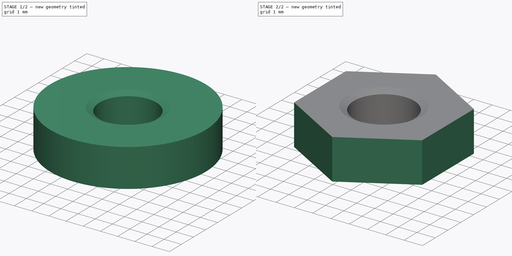
[diagram: build sequence overview — one tinted view per stage of 2, left to right]
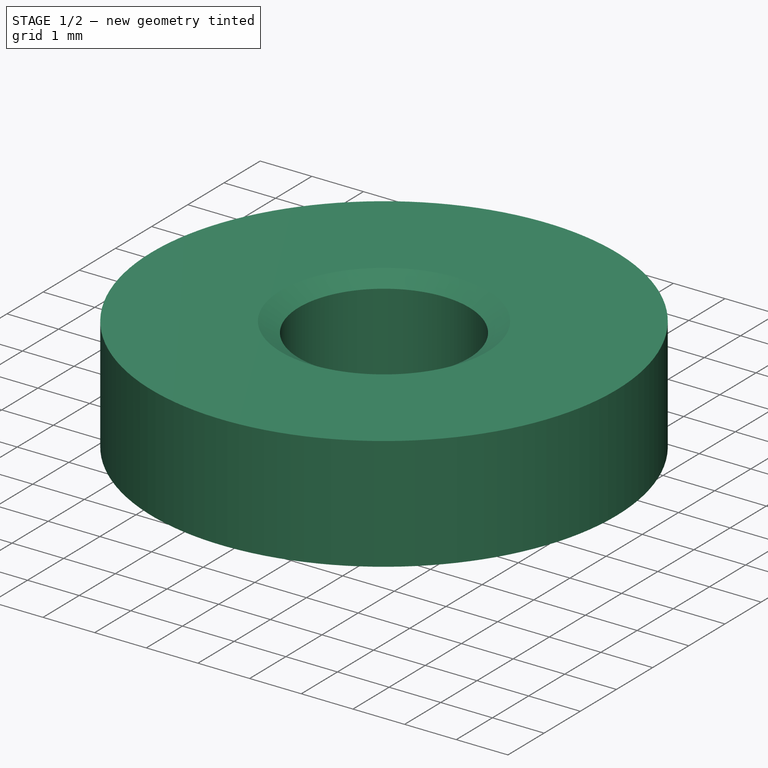
[diagram: stage 1 of 2 — iso view after this stage's code; geometry added in this stage tinted green]
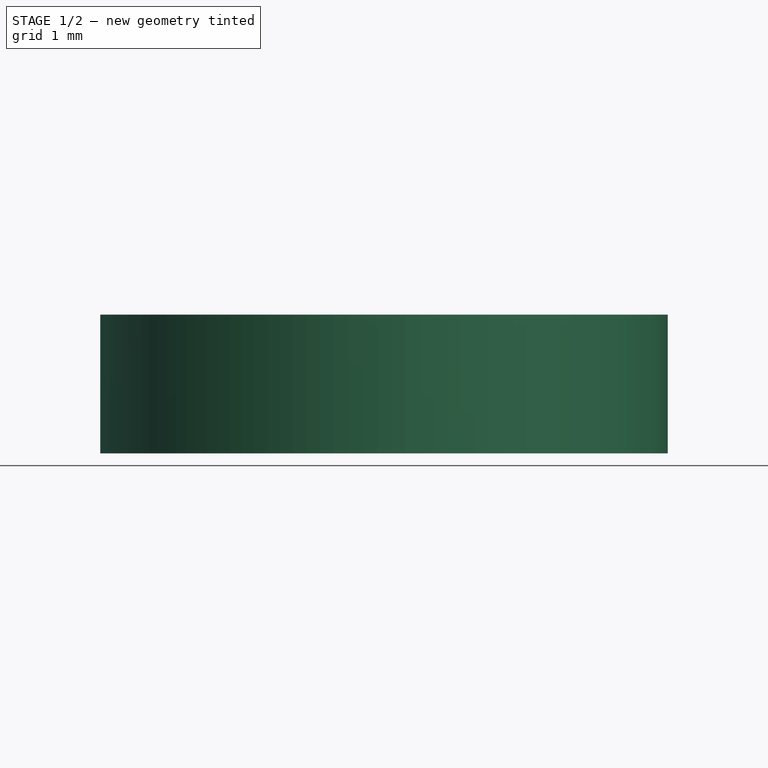
[diagram: stage 1 of 2 — front view after this stage's code; geometry added in this stage tinted green]
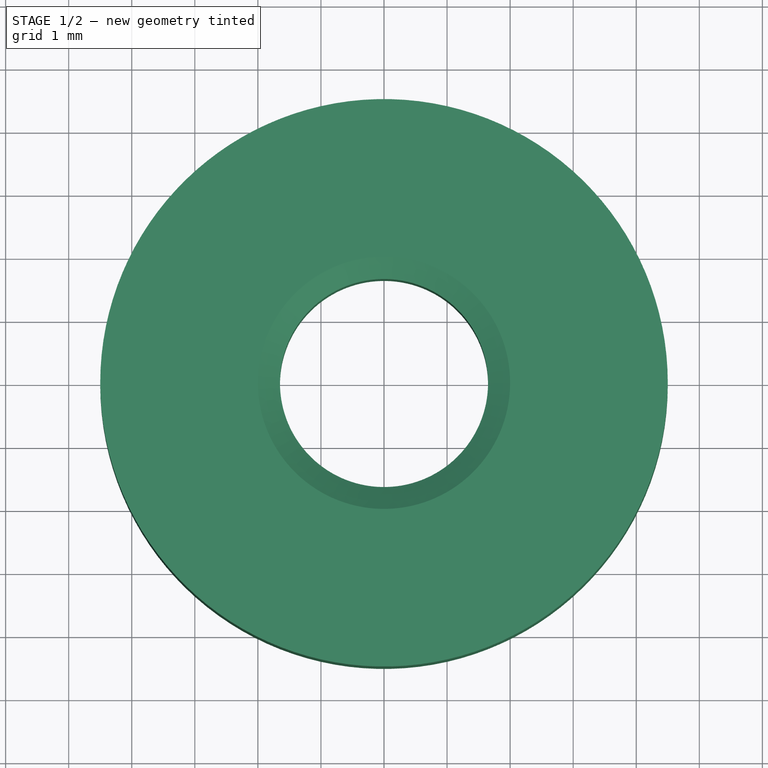
[diagram: stage 1 of 2 — top view after this stage's code; geometry added in this stage tinted green]
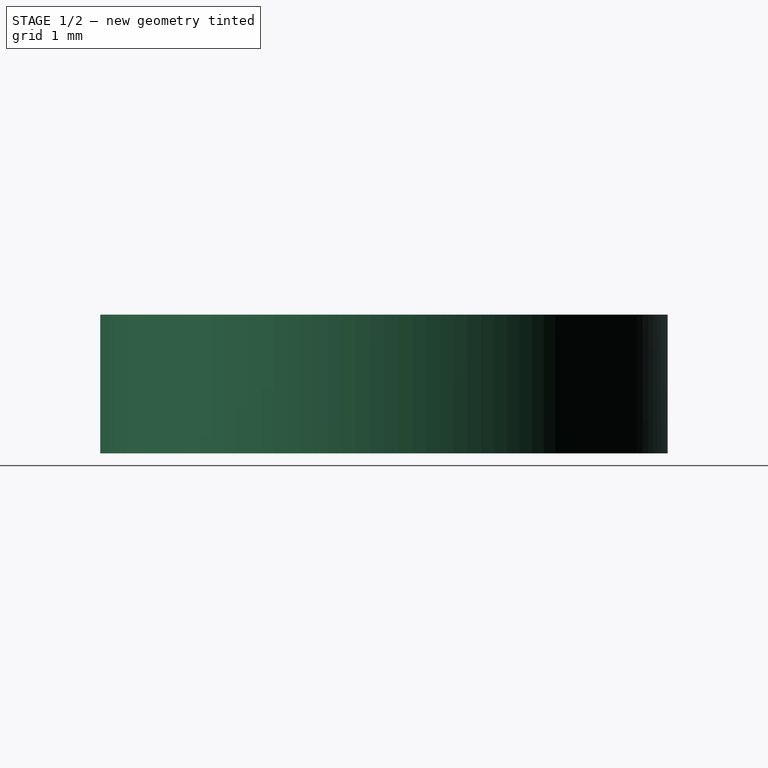
[diagram: stage 1 of 2 — right view after this stage's code; geometry added in this stage tinted green]
FCSTD DOCUMENT  (FreeCAD 0.15R4651 (Git))
Label: Mutter_DIN439A-M4
License: CC-BY 3.0
LicenseURL: http://creativecommons.org/licenses/by/3.0/
objects: Sketcher::SketchObject×2, PartDesign::Revolution×1, PartDesign::Pocket×1
note: 6 computed .brp shape members not serialized (recipe doc carries the construction recipe); baked Part::Feature solids carry a one-line shape summary decoded from their .brp

FEATURE [Sketcher::SketchObject] Sketch
  Placement = pos=(0,0,0) rot=(1,0,0;1.5708rad)
  sketch-geometry (6):
    g0: LineSegment StartX=2 StartY=0 StartZ=0 EndX=1.65 EndY=0.202073 EndZ=0
    g1: LineSegment StartX=1.65 StartY=0.202073 StartZ=0 EndX=1.65 EndY=1.99793 EndZ=0
    g2: LineSegment StartX=1.65 StartY=1.99793 StartZ=0 EndX=2 EndY=2.2 EndZ=0
    g3: LineSegment StartX=2 StartY=2.2 StartZ=0 EndX=4.5 EndY=2.2 EndZ=0
    g4: LineSegment StartX=4.5 StartY=2.2 StartZ=0 EndX=4.5 EndY=0 EndZ=0
    g5: LineSegment StartX=4.5 StartY=0 StartZ=0 EndX=2 EndY=0 EndZ=0
  constraints (18):
    c: PointOnObject(g0,g-1)
    c: Coincident(g0,g1)
    c: Vertical(g1)
    c: Coincident(g1,g2)
    c: Coincident(g2,g3)
    c: Horizontal(g3)
    c: Vertical(g4)
    c: PointOnObject(g5,g-1)
    c: Coincident(g5,g0)
    c: Equal(g2,g0)
    c: Angle(g2,g3) = 2.61799
    c: Angle(g5,g0) = 2.61799
    c: DistanceX(g-1,g1) = 1.65
    c: DistanceX(g-1,g2) = 2
    c: DistanceX(g-1,g4) = 4.5
    c: DistanceY(g3,g5) = -2.2
    c: Coincident(g3,g4)
    c: Coincident(g5,g4)
FEATURE [PartDesign::Revolution] Revolution
  Angle = 360
  Axis = (0,0,1)
  Base = (0,0,0)
  Placement = pos=(0,0,0) rot=(1,0,0;1.5708rad)
  ReferenceAxis = -> Sketch [V_Axis]
  Reversed = true
  Sketch = -> Sketch
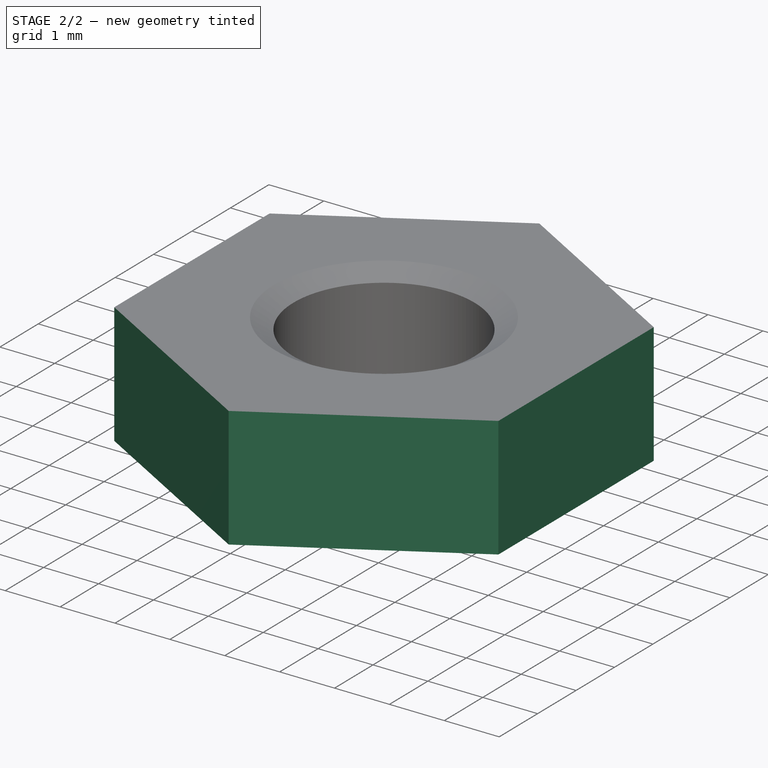
[diagram: stage 2 of 2 — iso view after this stage's code; geometry added in this stage tinted green]
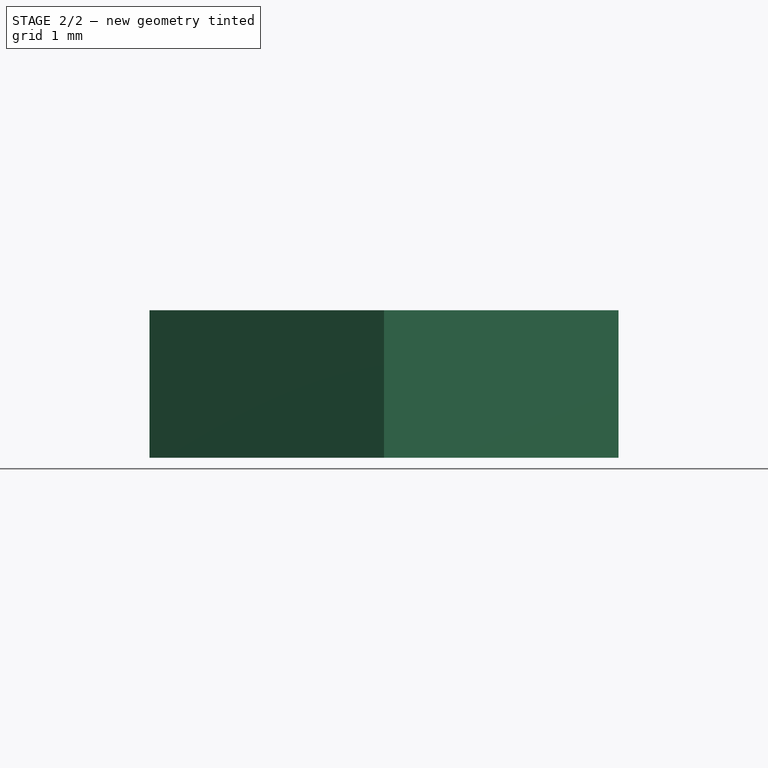
[diagram: stage 2 of 2 — front view after this stage's code; geometry added in this stage tinted green]
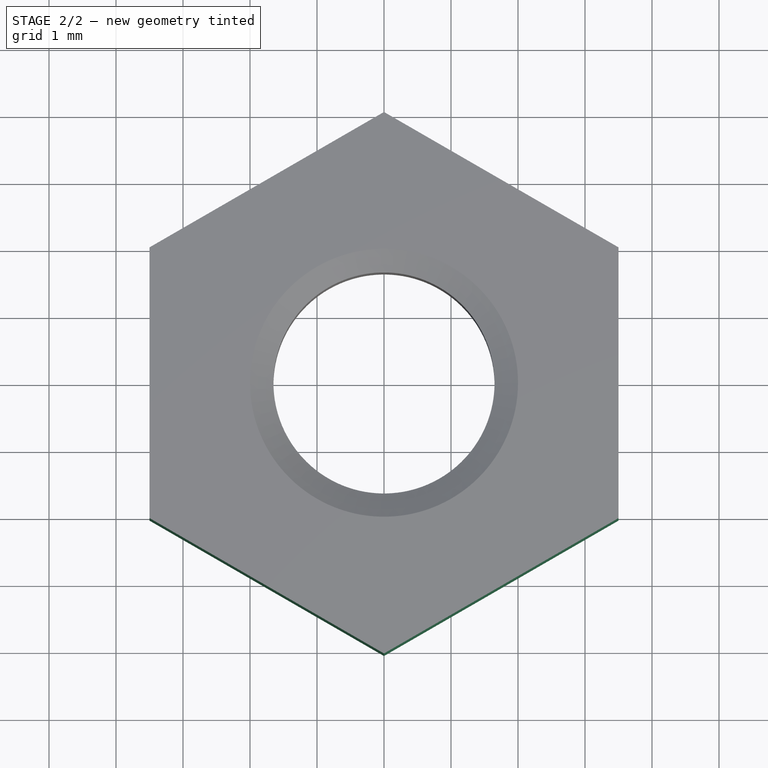
[diagram: stage 2 of 2 — top view after this stage's code; geometry added in this stage tinted green]
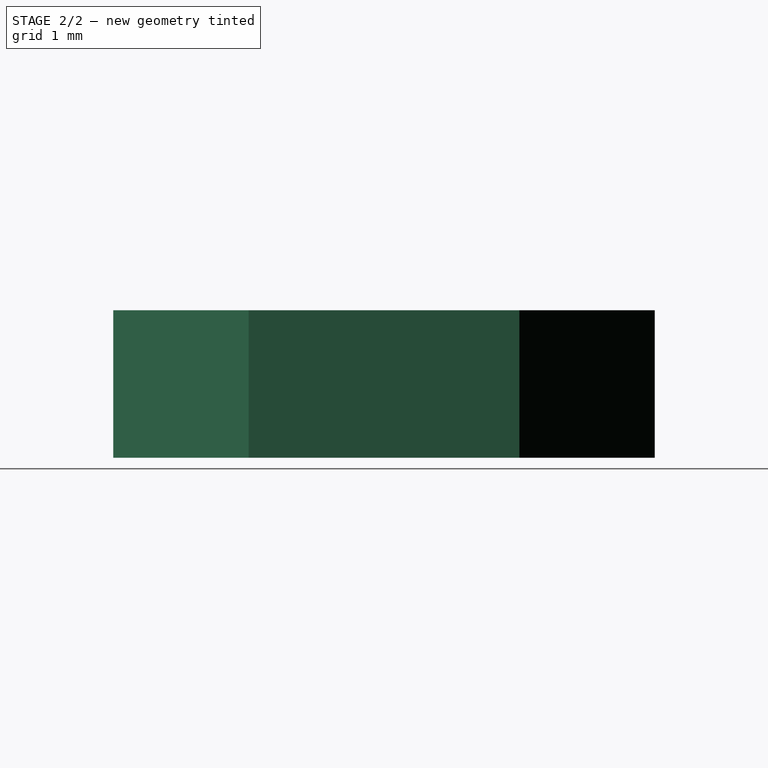
[diagram: stage 2 of 2 — right view after this stage's code; geometry added in this stage tinted green]
FEATURE [Sketcher::SketchObject] Sketch001
  Placement = pos=(0,0,2.2) rot=(0,0,1;3.14159rad)
  Support = -> Revolution [Face4]
  sketch-geometry (7):
    g0: LineSegment StartX=-3.5 StartY=2.02073 StartZ=0 EndX=-3.5 EndY=-2.02073 EndZ=0
    g1: LineSegment StartX=-3.5 StartY=-2.02073 StartZ=0 EndX=0 EndY=-4.04145 EndZ=0
    g2: LineSegment StartX=0 StartY=-4.04145 StartZ=0 EndX=3.5 EndY=-2.02073 EndZ=0
    g3: LineSegment StartX=3.5 StartY=-2.02073 StartZ=0 EndX=3.5 EndY=2.02073 EndZ=0
    g4: LineSegment StartX=3.5 StartY=2.02073 StartZ=0 EndX=0 EndY=4.04145 EndZ=0
    g5: LineSegment StartX=0 StartY=4.04145 StartZ=0 EndX=-3.5 EndY=2.02073 EndZ=0
    g6: Circle CenterX=0 CenterY=0 CenterZ=0 NormalX=0 NormalY=0 NormalZ=1 Radius=4.5
  constraints (21):
    c: Vertical(g0)
    c: Coincident(g0,g1)
    c: Coincident(g1,g2)
    c: Coincident(g2,g3)
    c: Vertical(g3)
    c: Coincident(g3,g4)
    c: PointOnObject(g4,g-2)
    c: Coincident(g4,g5)
    c: Coincident(g5,g0)
    c: PointOnObject(g1,g-2)
    c: Equal(g5,g0)
    c: Equal(g0,g1)
    c: Equal(g1,g2)
    c: Equal(g2,g3)
    c: Equal(g3,g4)
    c: Angle(g4,g3) = 2.0944
    c: Symmetric(g4,g1,g-1)
    c: DistanceX(g3,g0) = -7
    c: PointOnObject(g6,g-2)
    c: Radius(g6) = 4.5
    c: Coincident(g6,g-1)
FEATURE [PartDesign::Pocket] Pocket  label="Mutter DIN 439 A - M4 #"
  Length = 2.2
  Placement = pos=(0,0,0) rot=(1,0,0;1.5708rad)
  Sketch = -> Sketch001
  Type = 0
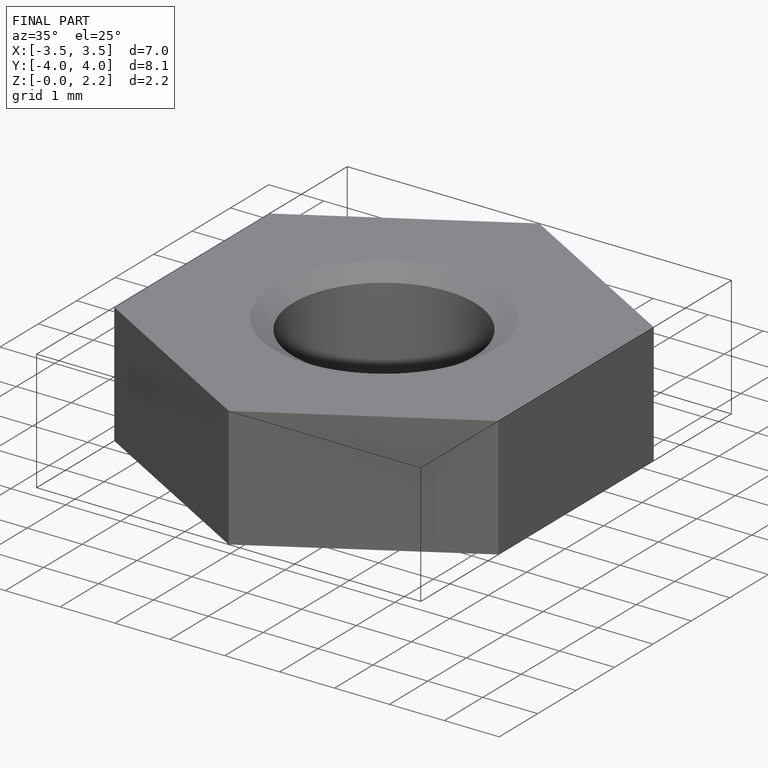
[diagram: finished part — iso view with bounding-box wireframe]
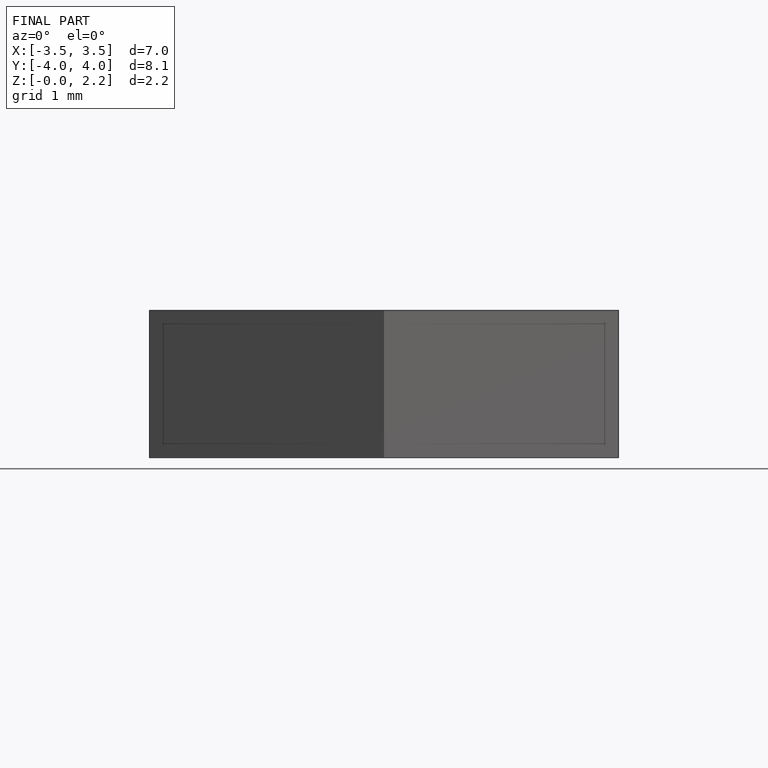
[diagram: finished part — front view with bounding-box wireframe]
